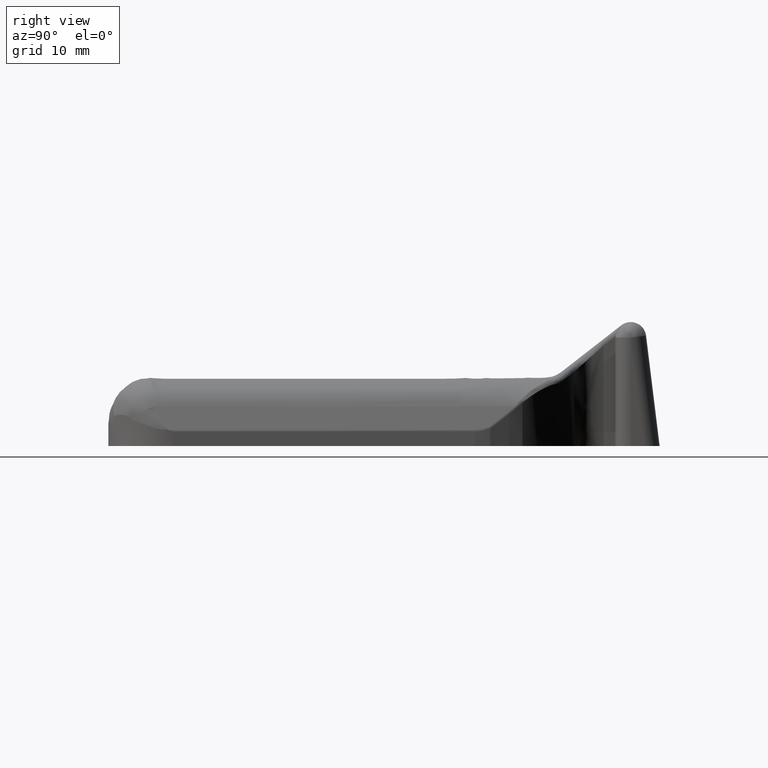
[diagram: clean part render]
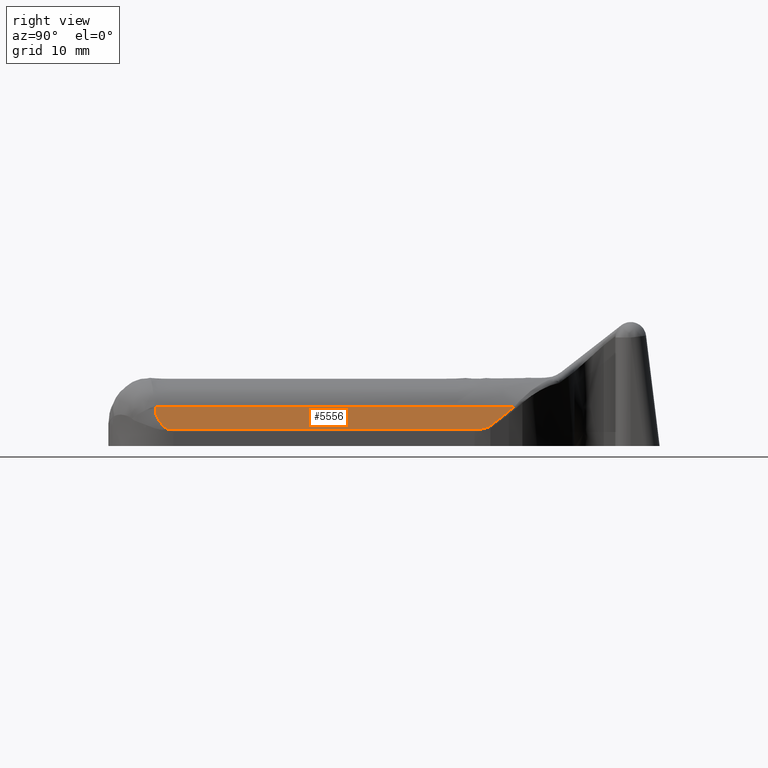
[diagram: same view with one face highlighted and labeled with its STEP entity id]
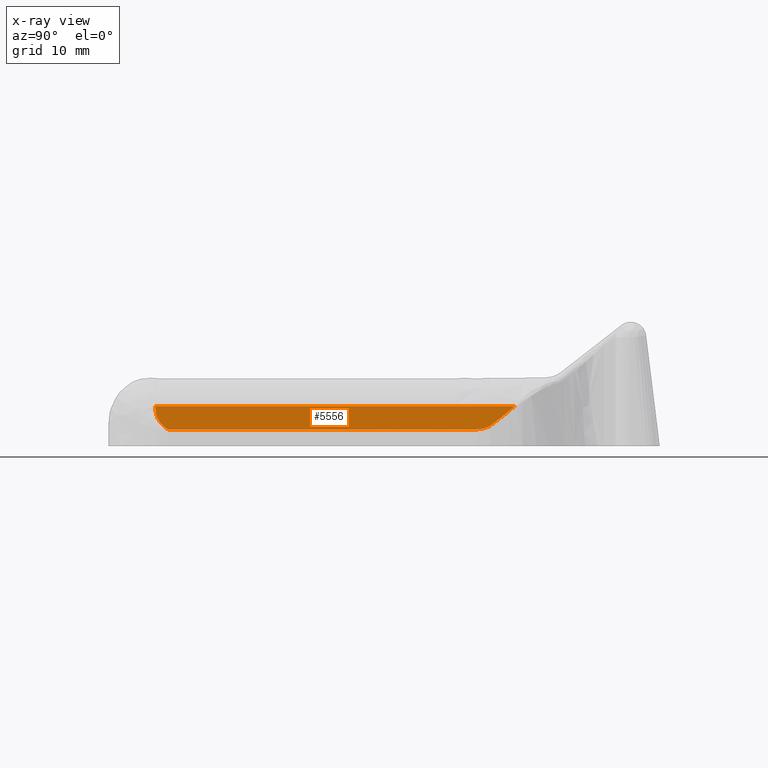
[diagram: x-ray of the same camera — body ghosted, the highlighted face saturated]
A machine part, right view. The second image highlights one B-rep face of the part: STEP entity #5556.
The next image is the same camera in x-ray: the body ghosted, the highlighted face saturated — about 0% of this face is hidden behind the body in this view.
In plain terms, the highlighted face is a freeform B-spline surface patch.
Its self-contained STEP definition (entity closure, byte-faithful):
#5366=CARTESIAN_POINT('',(36.049751690212993,-81.510677089458994,6.425722288404909));
#5367=VERTEX_POINT('',#5366);
#5400=CARTESIAN_POINT('',(36.049751690212993,-23.375833150580799,6.425722288404909));
#5401=VERTEX_POINT('',#5400);
#5402=CARTESIAN_POINT('',(36.049751690212993,-81.510677089458994,6.425722288404909));
#5403=CARTESIAN_POINT('',(36.049751690212993,-23.375833150580799,6.425722288404909));
#5404=QUASI_UNIFORM_CURVE('',1,(#5402,#5403),.UNSPECIFIED.,.F.,.U.);
#5405=EDGE_CURVE('',#5367,#5401,#5404,.T.);
#5473=CARTESIAN_POINT('',(35.979788705592817,-84.414512431529346,6.615110106576205));
#5474=CARTESIAN_POINT('',(37.520394495272299,-84.414512431529346,2.444793467906522));
#5475=CARTESIAN_POINT('',(35.979788705592817,-20.471996249212420,6.615110106576205));
#5476=CARTESIAN_POINT('',(37.520394495272299,-20.471996249212420,2.444793467906522));
#5477=B_SPLINE_SURFACE_WITH_KNOTS('',1,1,((#5473,#5475),(#5474,#5476)),.UNSPECIFIED.,.F.,.F.,.U.,(2,2),(2,2),(0.0,4.445785314875104),(0.0,63.942516182316922),.UNSPECIFIED.);
#5478=ORIENTED_EDGE('',*,*,#5405,.F.);
#5479=CARTESIAN_POINT('',(37.450430593167212,-79.344775386347095,2.634181062714820));
#5480=VERTEX_POINT('',#5479);
#5481=CARTESIAN_POINT('',(36.049751690212993,-81.510677089458994,6.425722288404909));
#5482=CARTESIAN_POINT('',(36.053706427183478,-81.505702619225502,6.415017233474144));
#5483=CARTESIAN_POINT('',(36.059823818751283,-81.499594947748946,6.398458041922783));
#5484=CARTESIAN_POINT('',(36.069939488829910,-81.488823145588739,6.371075919466646));
#5485=CARTESIAN_POINT('',(36.102956358820457,-81.458964783383465,6.281702306919582));
#5486=CARTESIAN_POINT('',(36.139020853203547,-81.437868708814321,6.184078627183375));
#5487=CARTESIAN_POINT('',(36.175280841664900,-81.421156100484396,6.085925592857985));
#5488=CARTESIAN_POINT('',(36.188133608722303,-81.416238842819922,6.051134091201979));
#5489=CARTESIAN_POINT('',(36.200961432382201,-81.410711021337050,6.016410132645635));
#5490=CARTESIAN_POINT('',(36.213854161943217,-81.406530011938358,5.981510428656924));
#5491=CARTESIAN_POINT('',(36.256804341793433,-81.391485469894818,5.865247370393202));
#5492=CARTESIAN_POINT('',(36.308596162971277,-81.381455393231860,5.725050345521429));
#5493=CARTESIAN_POINT('',(36.381816131726751,-81.363169945557871,5.526848803911816));
#5494=CARTESIAN_POINT('',(36.439890377887913,-81.346894836806726,5.369645710874559));
#5495=CARTESIAN_POINT('',(36.495661120233237,-81.327162137722425,5.218678048002619));
#5496=CARTESIAN_POINT('',(36.555406650738263,-81.299705650804967,5.056950900494350));
#5497=CARTESIAN_POINT('',(36.632890062931040,-81.241635115953841,4.847208495730544));
#5498=CARTESIAN_POINT('',(36.697392358612603,-81.169038512603265,4.672605103540987));
#5499=CARTESIAN_POINT('',(36.736882803929447,-81.118491875167990,4.565707114271044));
#5500=CARTESIAN_POINT('',(36.744716939481101,-81.107915730366145,4.544500634287890));
#5501=CARTESIAN_POINT('',(36.756570527327632,-81.092696610328460,4.512413766280880));
#5502=CARTESIAN_POINT('',(36.768222446177433,-81.076216797060098,4.480872802734428));
#5503=CARTESIAN_POINT('',(36.783840168027972,-81.054768923573235,4.438596676208365));
#5504=CARTESIAN_POINT('',(36.834018446411498,-80.981843075621128,4.302767439004888));
#5505=CARTESIAN_POINT('',(36.886666231311231,-80.895637685322370,4.160253413141859));
#5506=CARTESIAN_POINT('',(36.982310362165443,-80.725338574881718,3.901351159907581));
#5507=CARTESIAN_POINT('',(37.080193824013278,-80.519152102513473,3.636387187730934));
#5508=CARTESIAN_POINT('',(37.178349003675557,-80.274397256584692,3.370687693633391));
#5509=CARTESIAN_POINT('',(37.267026595387797,-80.036780815443407,3.130643395040376));
#5510=CARTESIAN_POINT('',(37.355568421430910,-79.762497110737016,2.890966605014022));
#5511=CARTESIAN_POINT('',(37.420194471599373,-79.496037139375346,2.716028217715837));
#5512=CARTESIAN_POINT('',(37.450430593167212,-79.344775386347095,2.634181062714820));
#5513=B_SPLINE_CURVE_WITH_KNOTS('',3,(#5481,#5482,#5483,#5484,#5485,#5486,#5487,#5488,#5489,#5490,#5491,#5492,#5493,#5494,#5495,#5496,#5497,#5498,#5499,#5500,#5501,#5502,#5503,#5504,#5505,#5506,#5507,#5508,#5509,#5510,#5511,#5512),.UNSPECIFIED.,.F.,.U.,(4,1,1,1,1,1,1,1,1,1,1,1,1,1,1,1,2,1,1,1,1,1,1,1,1,1,1,1,4),(0.000047340580708,0.037355477139742,0.056076088235576,0.093414600461958,0.336615197864865,0.374016666352198,0.411424550689113,0.448832435026021,0.486289037711428,0.523745640396839,0.823304486340501,0.935532820573754,1.160032113222386,1.328403417266239,1.421931556400902,1.683549681094754,2.020227391978170,2.057656359862572,2.095085327746978,2.132533041841213,2.169980755935443,2.244832961875316,2.618833303866145,2.693749569008605,3.217591707282490,3.666491248096646,3.816268502196955,4.265227683573325,4.788986555366563),.UNSPECIFIED.);
#5514=EDGE_CURVE('',#5367,#5480,#5513,.T.);
#5515=ORIENTED_EDGE('',*,*,#5514,.T.);
#5516=CARTESIAN_POINT('',(37.450430593167212,-29.881943000000000,2.634181062714820));
#5517=VERTEX_POINT('',#5516);
#5518=CARTESIAN_POINT('',(37.450430593167212,-79.344775386347095,2.634181062714820));
#5519=CARTESIAN_POINT('',(37.450430593167212,-29.881943000000000,2.634181062714820));
#5520=QUASI_UNIFORM_CURVE('',1,(#5518,#5519),.UNSPECIFIED.,.F.,.U.);
#5521=EDGE_CURVE('',#5480,#5517,#5520,.T.);
#5522=ORIENTED_EDGE('',*,*,#5521,.T.);
#5523=CARTESIAN_POINT('',(37.274577809103597,-27.501458595094501,3.110202765508405));
#5524=VERTEX_POINT('',#5523);
#5525=CARTESIAN_POINT('',(37.450430593167212,-29.881943000000000,2.634181062714820));
#5526=CARTESIAN_POINT('',(37.450430695608766,-28.685205408231166,2.634180785412406));
#5527=CARTESIAN_POINT('',(37.274577809103597,-27.501458595094501,3.110202765508405));
#5535=(BOUNDED_CURVE()B_SPLINE_CURVE(2,(#5525,#5526,#5527),.UNSPECIFIED.,.F.,.U.)CURVE()GEOMETRIC_REPRESENTATION_ITEM()QUASI_UNIFORM_CURVE()RATIONAL_B_SPLINE_CURVE((1.0,0.997282526993782,1.0))REPRESENTATION_ITEM(''));
#5536=EDGE_CURVE('',#5517,#5524,#5535,.T.);
#5537=ORIENTED_EDGE('',*,*,#5536,.T.);
#5538=CARTESIAN_POINT('',(36.426293875523697,-24.552559271915651,5.406450531304710));
#5539=VERTEX_POINT('',#5538);
#5540=CARTESIAN_POINT('',(37.274577809103597,-27.501458595094501,3.110202765508405));
#5541=CARTESIAN_POINT('',(36.426293875523697,-24.552559271915651,5.406450531304710));
#5542=QUASI_UNIFORM_CURVE('',1,(#5540,#5541),.UNSPECIFIED.,.F.,.U.);
#5543=EDGE_CURVE('',#5524,#5539,#5542,.T.);
#5544=ORIENTED_EDGE('',*,*,#5543,.T.);
#5545=CARTESIAN_POINT('',(36.426293875523697,-24.552559271915651,5.406450531304710));
#5546=CARTESIAN_POINT('',(36.368272884975987,-24.344244122298690,5.563509014179720));
#5547=CARTESIAN_POINT('',(36.307257452997383,-24.142930537460359,5.728673248140406));
#5548=CARTESIAN_POINT('',(36.181685681293892,-23.750586647178110,6.068586717111916));
#5549=CARTESIAN_POINT('',(36.117152195026947,-23.559246503250389,6.243274089034485));
#5550=CARTESIAN_POINT('',(36.049751690212993,-23.375833150580799,6.425722288404909));
#5551=B_SPLINE_CURVE_WITH_KNOTS('',3,(#5545,#5546,#5547,#5548,#5549,#5550),.UNSPECIFIED.,.F.,.U.,(4,2,4),(0.0,0.500000000000000,1.0),.UNSPECIFIED.);
#5552=EDGE_CURVE('',#5539,#5401,#5551,.T.);
#5553=ORIENTED_EDGE('',*,*,#5552,.T.);
#5554=EDGE_LOOP('',(#5478,#5515,#5522,#5537,#5544,#5553));
#5555=FACE_OUTER_BOUND('',#5554,.T.);
#5556=ADVANCED_FACE('',(#5555),#5477,.T.);